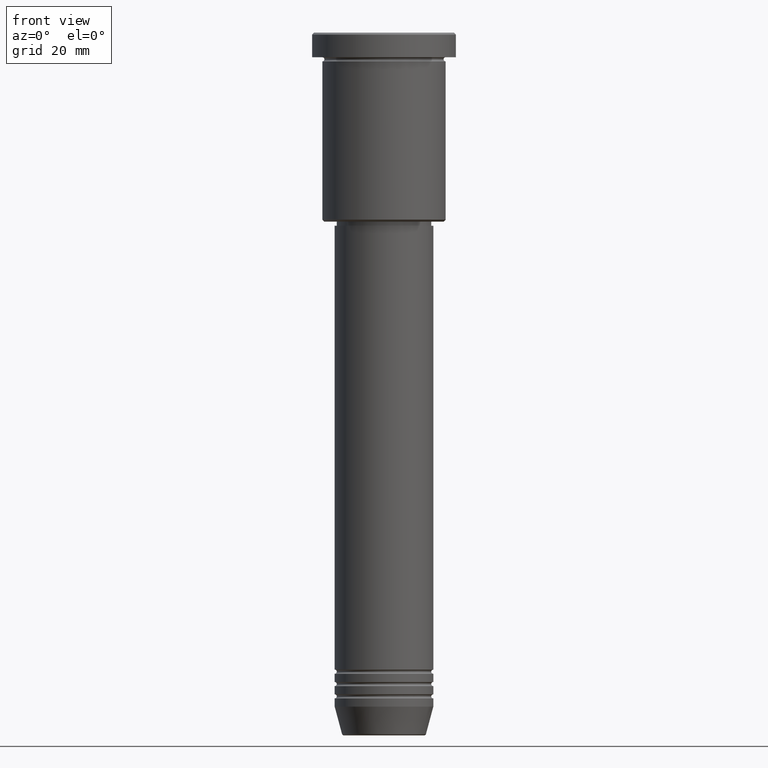
[diagram: clean part render]
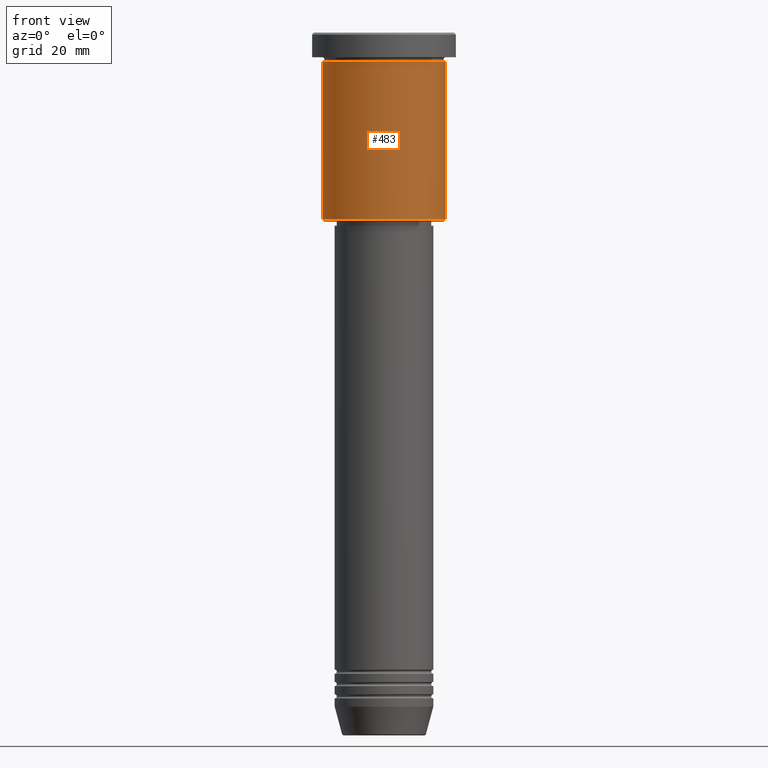
[diagram: same view with one face highlighted and labeled with its STEP entity id]
A machine part, front view. The second image highlights one B-rep face of the part: STEP entity #483.
In plain terms, the highlighted cylindrical surface (partial cylindrical patch) has radius 15 mm, axis along (-0, -0, 1).
Its self-contained STEP definition (entity closure, byte-faithful):
#3 = LINE ( 'NONE', #1001, #1030 ) ;
#31 = VERTEX_POINT ( 'NONE', #35 ) ;
#35 = CARTESIAN_POINT ( 'NONE',  ( 15.00000000000000000, 0.000000000000000000, -45.49999999999997158 ) ) ;
#50 = ORIENTED_EDGE ( 'NONE', *, *, #1059, .F. ) ;
#57 = CARTESIAN_POINT ( 'NONE',  ( 0.000000000000000000, 0.000000000000000000, -45.49999999999997158 ) ) ;
#60 = VERTEX_POINT ( 'NONE', #770 ) ;
#82 = CARTESIAN_POINT ( 'NONE',  ( 15.00000000000000000, 0.000000000000000000, -6.999999999999995559 ) ) ;
#138 = CARTESIAN_POINT ( 'NONE',  ( 0.000000000000000000, 0.000000000000000000, 0.000000000000000000 ) ) ;
#152 = EDGE_LOOP ( 'NONE', ( #960, #1026, #618, #50 ) ) ;
#163 = CARTESIAN_POINT ( 'NONE',  ( -15.00000000000000000, 1.836970198721029589E-15, 0.000000000000000000 ) ) ;
#190 = AXIS2_PLACEMENT_3D ( 'NONE', #138, #403, #677 ) ;
#207 = DIRECTION ( 'NONE',  ( -0.000000000000000000, -0.000000000000000000, 1.000000000000000000 ) ) ;
#250 = CIRCLE ( 'NONE', #912, 15.00000000000000000 ) ;
#309 = FACE_OUTER_BOUND ( 'NONE', #152, .T. ) ;
#348 = DIRECTION ( 'NONE',  ( -0.000000000000000000, -0.000000000000000000, 1.000000000000000000 ) ) ;
#349 = DIRECTION ( 'NONE',  ( -0.000000000000000000, -0.000000000000000000, 1.000000000000000000 ) ) ;
#403 = DIRECTION ( 'NONE',  ( -0.000000000000000000, -0.000000000000000000, 1.000000000000000000 ) ) ;
#413 = VECTOR ( 'NONE', #349, 1000.000000000000000 ) ;
#428 = LINE ( 'NONE', #163, #413 ) ;
#483 = ADVANCED_FACE ( 'NONE', ( #309 ), #787, .T. ) ;
#487 = EDGE_CURVE ( 'NONE', #526, #31, #1027, .T. ) ;
#526 = VERTEX_POINT ( 'NONE', #1167 ) ;
#618 = ORIENTED_EDGE ( 'NONE', *, *, #1135, .T. ) ;
#660 = EDGE_CURVE ( 'NONE', #526, #60, #428, .T. ) ;
#677 = DIRECTION ( 'NONE',  ( 1.000000000000000000, 0.000000000000000000, 0.000000000000000000 ) ) ;
#720 = DIRECTION ( 'NONE',  ( 1.000000000000000000, 0.000000000000000000, 0.000000000000000000 ) ) ;
#770 = CARTESIAN_POINT ( 'NONE',  ( -15.00000000000000000, 1.836970198721029589E-15, -6.999999999999995559 ) ) ;
#787 = CYLINDRICAL_SURFACE ( 'NONE', #190, 15.00000000000000000 ) ;
#813 = AXIS2_PLACEMENT_3D ( 'NONE', #57, #1150, #877 ) ;
#877 = DIRECTION ( 'NONE',  ( -1.000000000000000000, 0.000000000000000000, 0.000000000000000000 ) ) ;
#879 = VERTEX_POINT ( 'NONE', #82 ) ;
#884 = CARTESIAN_POINT ( 'NONE',  ( 0.000000000000000000, 0.000000000000000000, -6.999999999999995559 ) ) ;
#912 = AXIS2_PLACEMENT_3D ( 'NONE', #884, #348, #720 ) ;
#960 = ORIENTED_EDGE ( 'NONE', *, *, #660, .F. ) ;
#1001 = CARTESIAN_POINT ( 'NONE',  ( 15.00000000000000000, 0.000000000000000000, 0.000000000000000000 ) ) ;
#1026 = ORIENTED_EDGE ( 'NONE', *, *, #487, .T. ) ;
#1027 = CIRCLE ( 'NONE', #813, 15.00000000000000000 ) ;
#1030 = VECTOR ( 'NONE', #207, 1000.000000000000000 ) ;
#1059 = EDGE_CURVE ( 'NONE', #60, #879, #250, .T. ) ;
#1135 = EDGE_CURVE ( 'NONE', #31, #879, #3, .T. ) ;
#1150 = DIRECTION ( 'NONE',  ( -0.000000000000000000, -0.000000000000000000, 1.000000000000000000 ) ) ;
#1167 = CARTESIAN_POINT ( 'NONE',  ( -15.00000000000000000, 1.836970198721029589E-15, -45.49999999999997158 ) ) ;